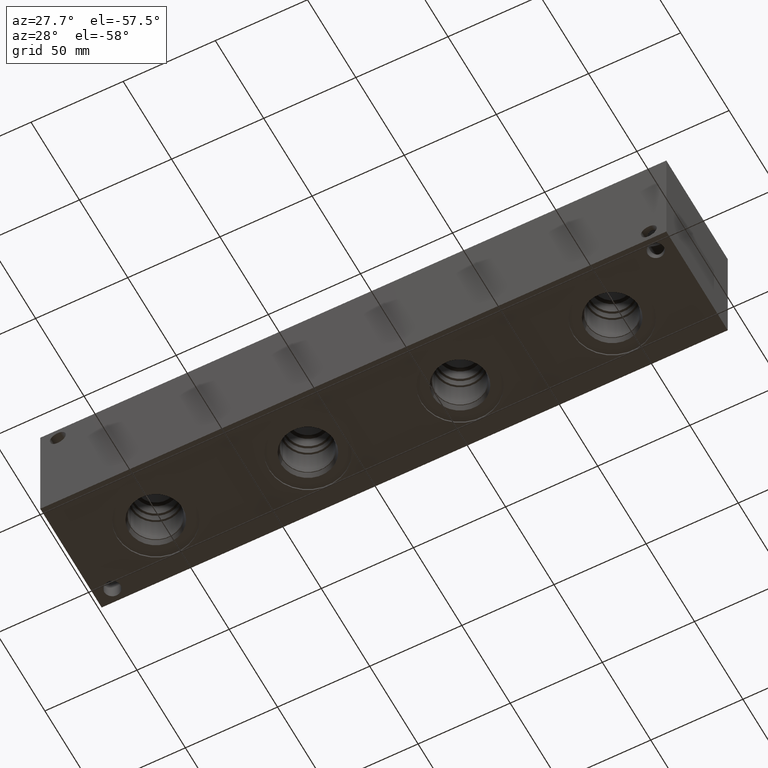
[diagram: clean part render]
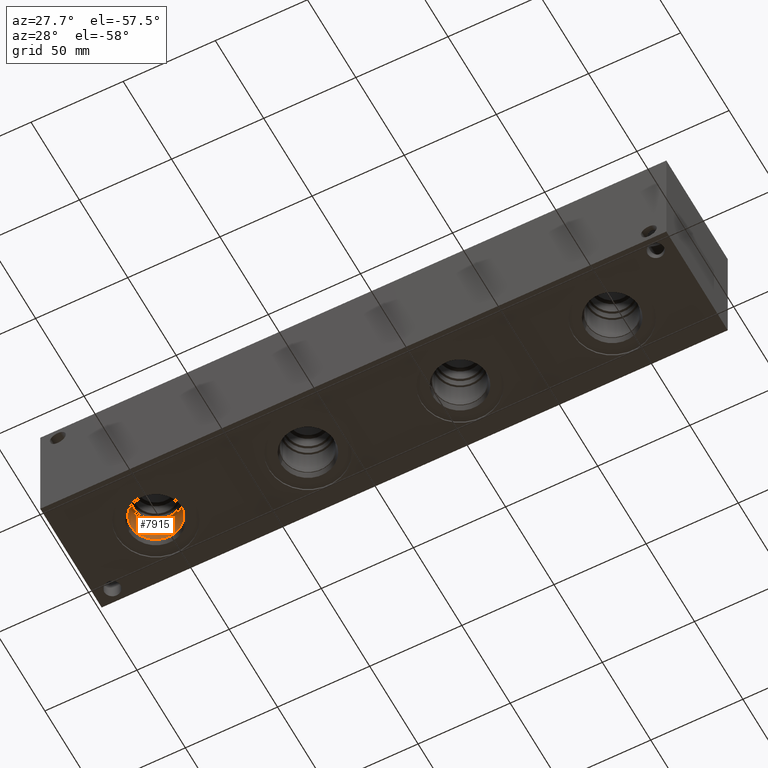
[diagram: same view with one face highlighted and labeled with its STEP entity id]
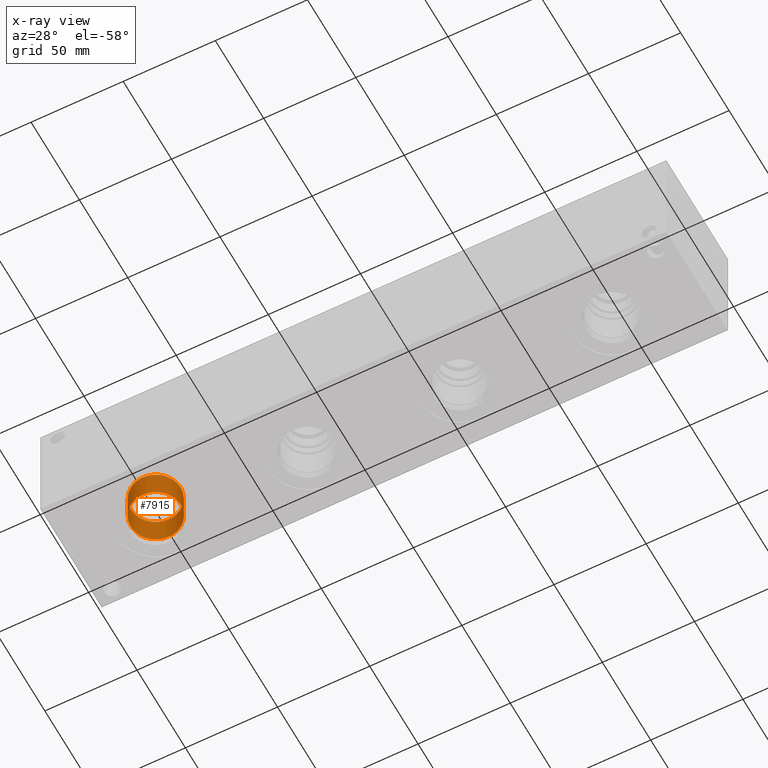
[diagram: x-ray of the same camera — body ghosted, the highlighted face saturated]
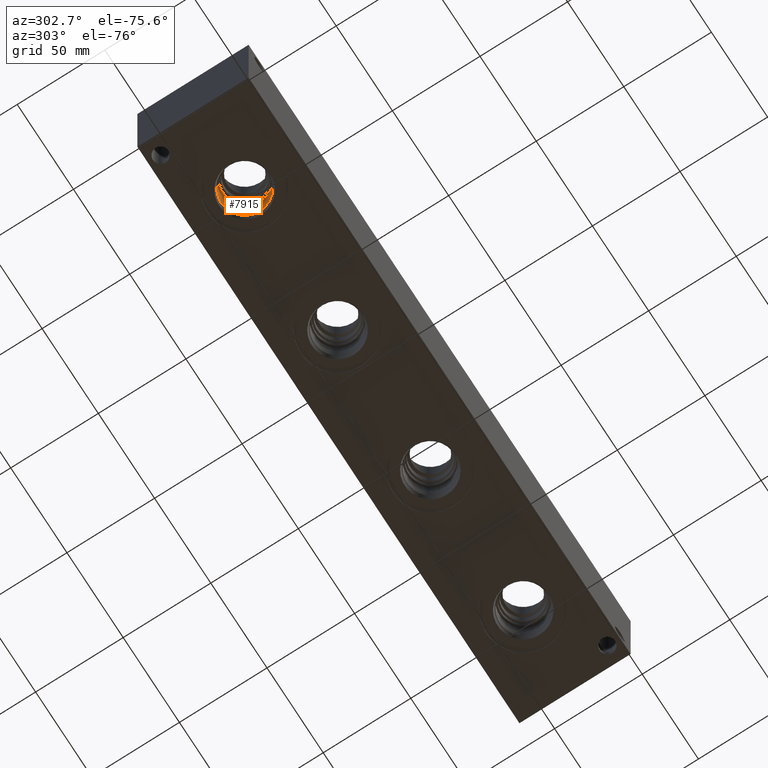
[diagram: same view with one face highlighted and labeled with its STEP entity id]
A machine part, auxiliary view. The second image highlights one B-rep face of the part: STEP entity #7915.
The next image is the same camera in x-ray: the body ghosted, the highlighted face saturated — about 0% of this face is hidden behind the body in this view.
A second angle (auxiliary view) of the same face is appended — the face is thin or edge-on in the first view.
In plain terms, the highlighted cylindrical surface (bore or boss wall) has radius 13.5001 mm, axis along (0, 0, -1).
Its self-contained STEP definition (entity closure, byte-faithful):
#74=CYLINDRICAL_SURFACE('',#8339,13.5001);
#178=CIRCLE('',#8336,13.5001);
#179=CIRCLE('',#8337,13.5001);
#181=CIRCLE('',#8340,13.5001);
#927=FACE_OUTER_BOUND('',#1373,.T.);
#1373=EDGE_LOOP('',(#6698,#6699,#6700,#6701,#6702));
#2162=LINE('',#13309,#2921);
#2921=VECTOR('',#9892,13.5001);
#3619=VERTEX_POINT('',#13300);
#3620=VERTEX_POINT('',#13301);
#3622=VERTEX_POINT('',#13307);
#4672=EDGE_CURVE('',#3619,#3620,#178,.T.);
#4673=EDGE_CURVE('',#3620,#3619,#179,.T.);
#4675=EDGE_CURVE('',#3622,#3622,#181,.T.);
#4676=EDGE_CURVE('',#3622,#3620,#2162,.T.);
#6698=ORIENTED_EDGE('',*,*,#4675,.F.);
#6699=ORIENTED_EDGE('',*,*,#4676,.T.);
#6700=ORIENTED_EDGE('',*,*,#4672,.F.);
#6701=ORIENTED_EDGE('',*,*,#4673,.F.);
#6702=ORIENTED_EDGE('',*,*,#4676,.F.);
#7915=ADVANCED_FACE('',(#927),#74,.F.);
#8336=AXIS2_PLACEMENT_3D('',#13302,#9882,#9883);
#8337=AXIS2_PLACEMENT_3D('',#13303,#9884,#9885);
#8339=AXIS2_PLACEMENT_3D('',#13306,#9888,#9889);
#8340=AXIS2_PLACEMENT_3D('',#13308,#9890,#9891);
#9882=DIRECTION('center_axis',(0.,0.,-1.));
#9883=DIRECTION('ref_axis',(1.,0.,0.));
#9884=DIRECTION('center_axis',(0.,0.,-1.));
#9885=DIRECTION('ref_axis',(1.,0.,0.));
#9888=DIRECTION('center_axis',(0.,0.,-1.));
#9889=DIRECTION('ref_axis',(1.,0.,0.));
#9890=DIRECTION('center_axis',(0.,0.,1.));
#9891=DIRECTION('ref_axis',(1.,0.,0.));
#9892=DIRECTION('',(0.,0.,1.));
#13300=CARTESIAN_POINT('',(59.5249,31.75,19.8374));
#13301=CARTESIAN_POINT('',(32.5247,31.75,19.8374));
#13302=CARTESIAN_POINT('Origin',(46.0248,31.75,19.8374));
#13303=CARTESIAN_POINT('Origin',(46.0248,31.75,19.8374));
#13306=CARTESIAN_POINT('Origin',(46.0248,31.75,9.9187));
#13307=CARTESIAN_POINT('',(32.5247,31.75,4.2799));
#13308=CARTESIAN_POINT('Origin',(46.0248,31.75,4.2799));
#13309=CARTESIAN_POINT('',(32.5247,31.75,9.9187));